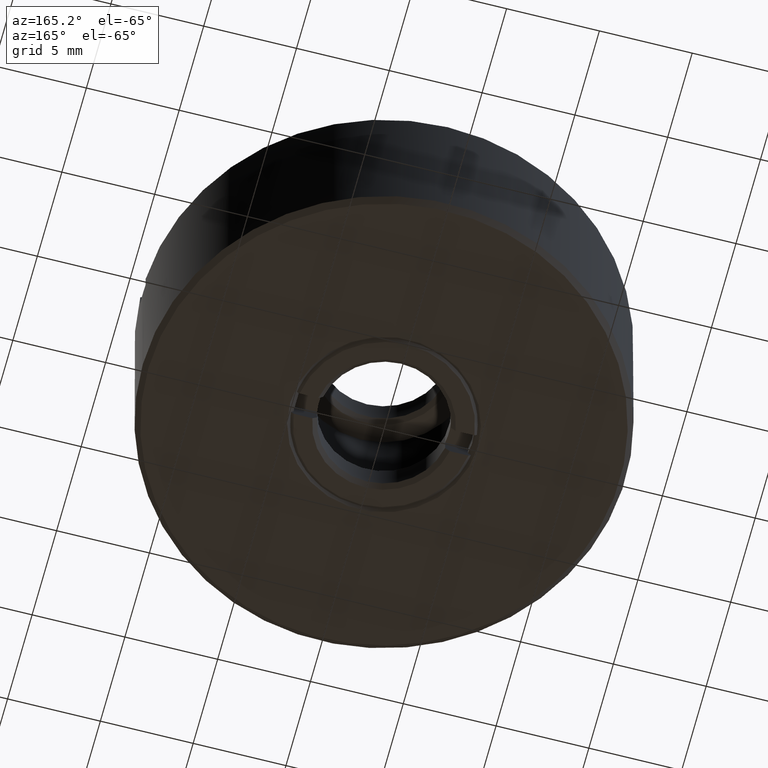
[diagram: clean part render]
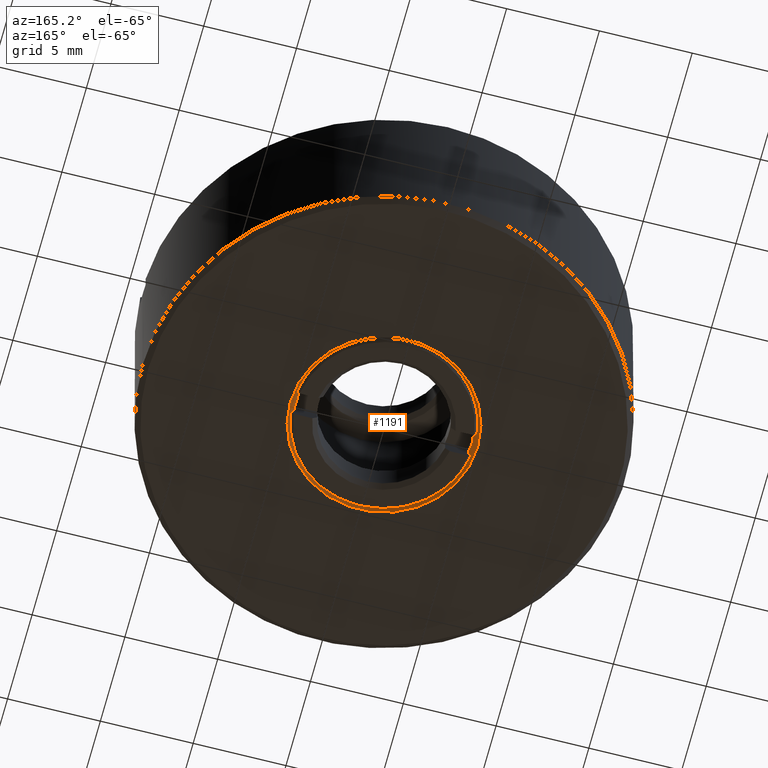
[diagram: same view with one face highlighted and labeled with its STEP entity id]
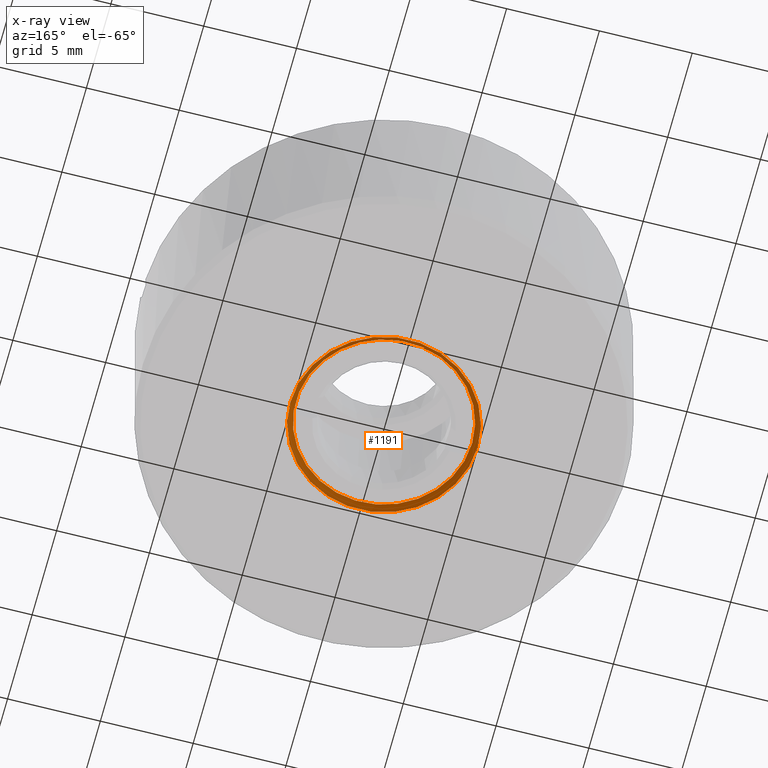
[diagram: x-ray of the same camera — body ghosted, the highlighted face saturated]
A machine part, auxiliary view. The second image highlights one B-rep face of the part: STEP entity #1191.
The next image is the same camera in x-ray: the body ghosted, the highlighted face saturated — about 0% of this face is hidden behind the body in this view.
In plain terms, the highlighted conical surface has half-angle 45 deg.
Its self-contained STEP definition (entity closure, byte-faithful):
#33 = CIRCLE ( 'NONE', #989, 4.750000000001364242 ) ;
#114 = CONICAL_SURFACE ( 'NONE', #681, 5.049999999869214662, 0.7853981633974482790 ) ;
#214 = VERTEX_POINT ( 'NONE', #1339 ) ;
#218 = DIRECTION ( 'NONE',  ( 0.000000000000000000, 0.000000000000000000, -1.000000000000000000 ) ) ;
#230 = FACE_OUTER_BOUND ( 'NONE', #749, .T. ) ;
#273 = EDGE_LOOP ( 'NONE', ( #1238 ) ) ;
#351 = CARTESIAN_POINT ( 'NONE',  ( 0.000000000000000000, 0.000000000000000000, -4.999999999881765689 ) ) ;
#400 = CARTESIAN_POINT ( 'NONE',  ( 0.000000000000000000, 0.000000000000000000, -4.999999999995452526 ) ) ;
#411 = DIRECTION ( 'NONE',  ( -0.000000000000000000, -0.000000000000000000, -1.000000000000000000 ) ) ;
#550 = DIRECTION ( 'NONE',  ( -1.000000000000000000, 0.000000000000000000, 0.000000000000000000 ) ) ;
#551 = CIRCLE ( 'NONE', #1358, 5.049999999982901500 ) ;
#614 = EDGE_CURVE ( 'NONE', #1581, #1581, #33, .T. ) ;
#663 = CARTESIAN_POINT ( 'NONE',  ( 0.000000000000000000, 0.000000000000000000, -4.700000000013915269 ) ) ;
#681 = AXIS2_PLACEMENT_3D ( 'NONE', #351, #218, #1604 ) ;
#749 = EDGE_LOOP ( 'NONE', ( #987 ) ) ;
#879 = DIRECTION ( 'NONE',  ( -1.000000000000000000, 0.000000000000000000, 0.000000000000000000 ) ) ;
#898 = DIRECTION ( 'NONE',  ( 0.000000000000000000, 0.000000000000000000, -1.000000000000000000 ) ) ;
#987 = ORIENTED_EDGE ( 'NONE', *, *, #1417, .T. ) ;
#989 = AXIS2_PLACEMENT_3D ( 'NONE', #663, #411, #550 ) ;
#1191 = ADVANCED_FACE ( 'NONE', ( #230, #1342 ), #114, .F. ) ;
#1215 = CARTESIAN_POINT ( 'NONE',  ( -4.750000000001364242, 0.000000000000000000, -4.700000000013915269 ) ) ;
#1238 = ORIENTED_EDGE ( 'NONE', *, *, #614, .F. ) ;
#1339 = CARTESIAN_POINT ( 'NONE',  ( -5.049999999982901500, 0.000000000000000000, -4.999999999995452526 ) ) ;
#1342 = FACE_BOUND ( 'NONE', #273, .T. ) ;
#1358 = AXIS2_PLACEMENT_3D ( 'NONE', #400, #898, #879 ) ;
#1417 = EDGE_CURVE ( 'NONE', #214, #214, #551, .T. ) ;
#1581 = VERTEX_POINT ( 'NONE', #1215 ) ;
#1604 = DIRECTION ( 'NONE',  ( -1.000000000000000000, 0.000000000000000000, 0.000000000000000000 ) ) ;